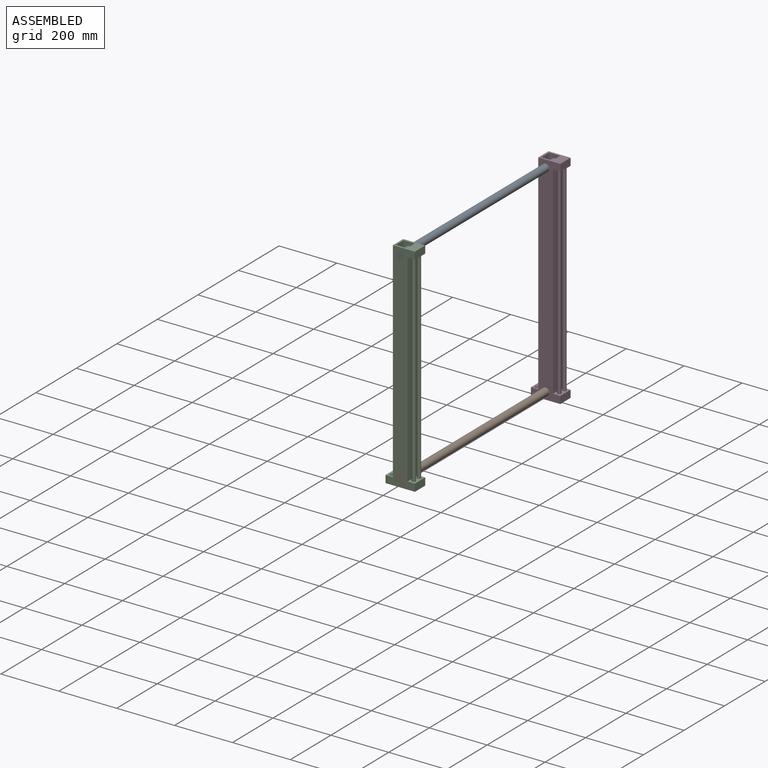
[diagram: assembled view]
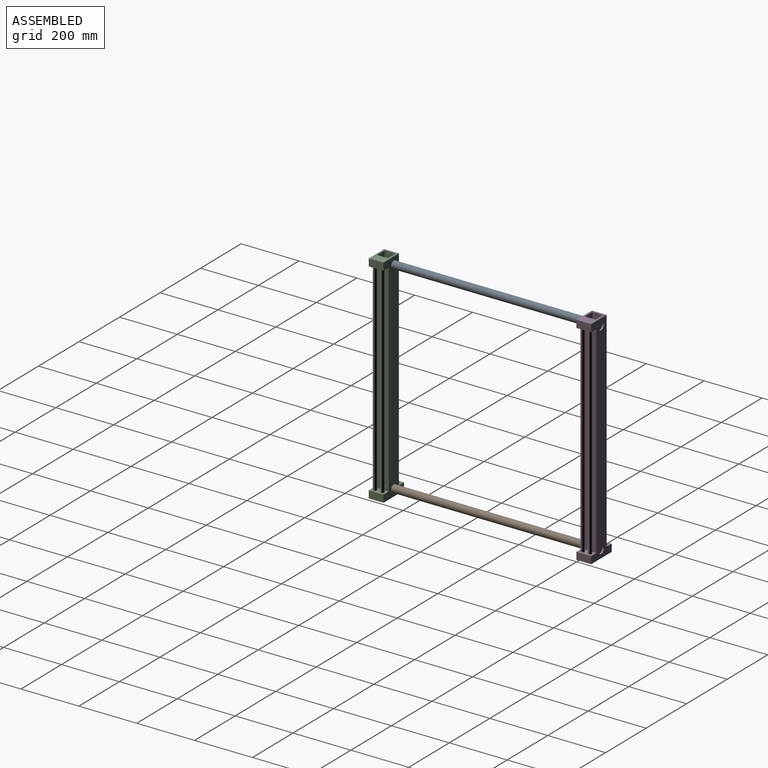
[diagram: assembled view, second angle]
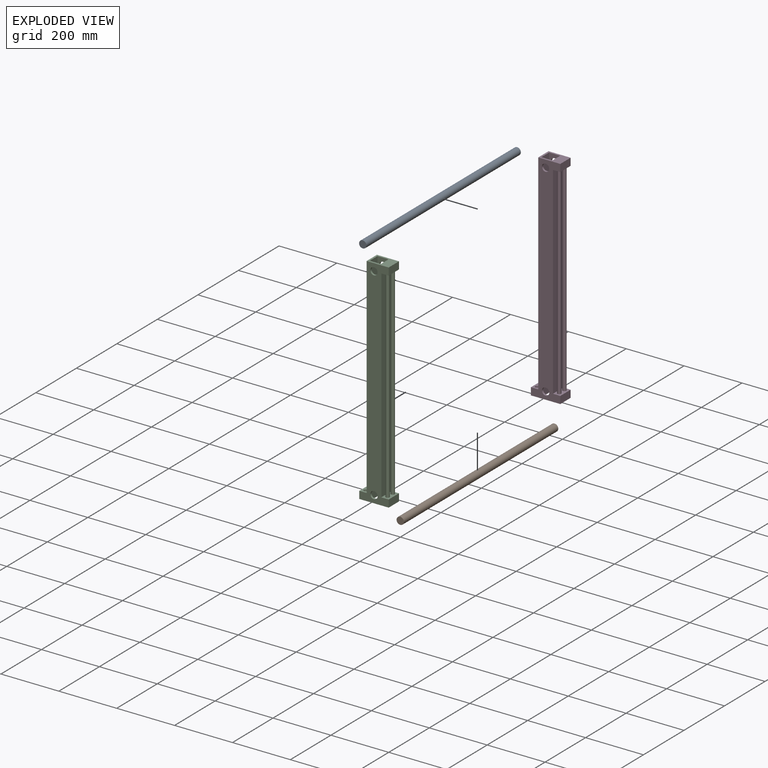
[diagram: exploded view]
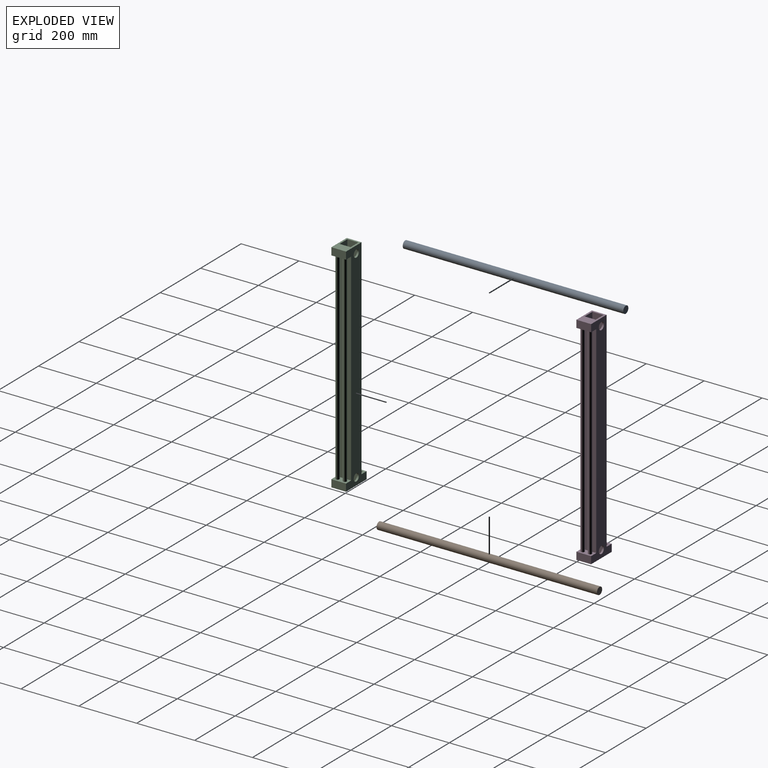
[diagram: exploded view, second angle]
ASSEMBLY  parts=4 mates=3
PART A: 3 faces, bbox 25.4x762x25.4 mm
  f0: cylinder r=12.7mm len=762mm, axis (0,1,0), area 60804.9mm2, adj f1,f2
  f1: plane 25.4x25.4mm, normal (0,-1,0), area 506.7mm2, adj f0
  f2: plane 25.4x25.4mm, normal (0,1,0), area 506.7mm2, adj f0
PART B: same geometry as A
PART C: 24 faces, bbox 101.6x50.8x750 mm
  f0: plane 699.2x50.8mm, normal (1,0,0), area 35519.4mm2, adj f1,f3,f18,f20
  f1: plane 750x101.6mm, normal (0,1,0), area 39022.1mm2, adj f0,f2,f8,f9,f12,f13,f14,f15
  f2: plane 724.6x50.8mm, normal (-1,0,0), area 36809.7mm2, adj f1,f3,f8,f14
  f3: plane 750x101.6mm, normal (0,-1,0), area 39022.1mm2, adj f0,f2,f8,f9,f10,f11,f14,f15
  f4: plane 750x38.1mm, normal (1,0,0), area 28575mm2, adj f5,f7,f8,f9
  f5: plane 750x38.1mm, normal (0,-1,0), area 27561.6mm2, adj f4,f6,f8,f9,f12,f13
  f6: plane 750x38.1mm, normal (-1,0,0), area 28575mm2, adj f5,f7,f8,f9
  f7: plane 750x38.1mm, normal (0,1,0), area 27561.6mm2, adj f4,f6,f8,f9,f10,f11
  f8: plane 76.2x50.8mm, normal (0,0,1), area 2419.3mm2, adj f1,f2,f3,f4,f5,f6,f7,f19
  f9: plane 101.6x50.8mm, normal (0,0,-1), area 3456.3mm2, adj f1,f3,f4,f5,f6,f7,f15,f16
  f10: cylinder r=12.7mm len=25.4mm, axis (0,-1,0), area 506.7mm2, adj f3,f7
  f11: cylinder r=12.7mm len=25.4mm, axis (0,-1,0), area 506.7mm2, adj f3,f7
  f12: cylinder r=12.7mm len=25.4mm, axis (0,-1,0), area 506.7mm2, adj f1,f5
  f13: cylinder r=12.7mm len=25.4mm, axis (0,-1,0), area 506.7mm2, adj f1,f5
  f14: plane 50.8x25.4mm, normal (0,0,1), area 1037mm2, adj f1,f2,f3,f15,f16,f17
  f15: plane 50.8x25.4mm, normal (-1,0,0), area 1290.3mm2, adj f1,f3,f9,f14
  f16: cylinder r=6.35mm len=25.4mm, axis (0,0,1), area 1013.4mm2, adj f9,f14
  f17: cylinder r=6.35mm len=25.4mm, axis (0,0,1), area 1013.4mm2, adj f9,f14
  f18: plane 50.8x25.4mm, normal (0,0,-1), area 1037mm2, adj f0,f1,f3,f19,f22,f23
  f19: plane 50.8x25.4mm, normal (1,0,0), area 1290.3mm2, adj f1,f3,f8,f18
  f20: plane 50.8x25.4mm, normal (0,0,1), area 1037mm2, adj f0,f1,f3,f21,f22,f23
  f21: plane 50.8x25.4mm, normal (1,0,0), area 1290.3mm2, adj f1,f3,f9,f20
  f22: cylinder r=6.35mm len=699.2mm, axis (0,0,1), area 27896.8mm2, adj f18,f20
  f23: cylinder r=6.35mm len=699.2mm, axis (0,0,1), area 27896.8mm2, adj f18,f20
PART D: same geometry as C
PLACE A t=(572.71,-1199.87,-183.69)mm
PLACE B t=(572.71,-1199.87,-882.89)mm
PLACE C t=(572.71,-1809.45,-908.29)mm
PLACE D t=(572.71,-1091.9,-908.29)mm
MATE fastened B.f0 <-> D.f10  axis (0,1,0) through (572.71,-1199.87,-882.89)mm
MATE fastened A.f0 <-> C.f11  axis (0,-1,0) through (572.71,-1961.87,-183.69)mm
MATE fastened B.f0 <-> C.f10  axis (0,1,0) through (572.71,-1961.87,-882.89)mm
